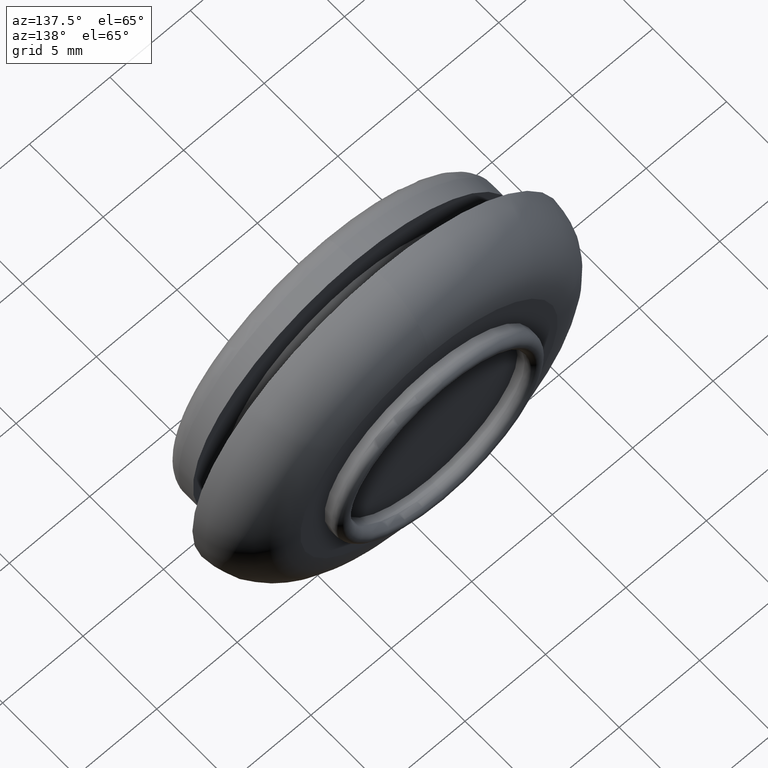
[diagram: clean part render]
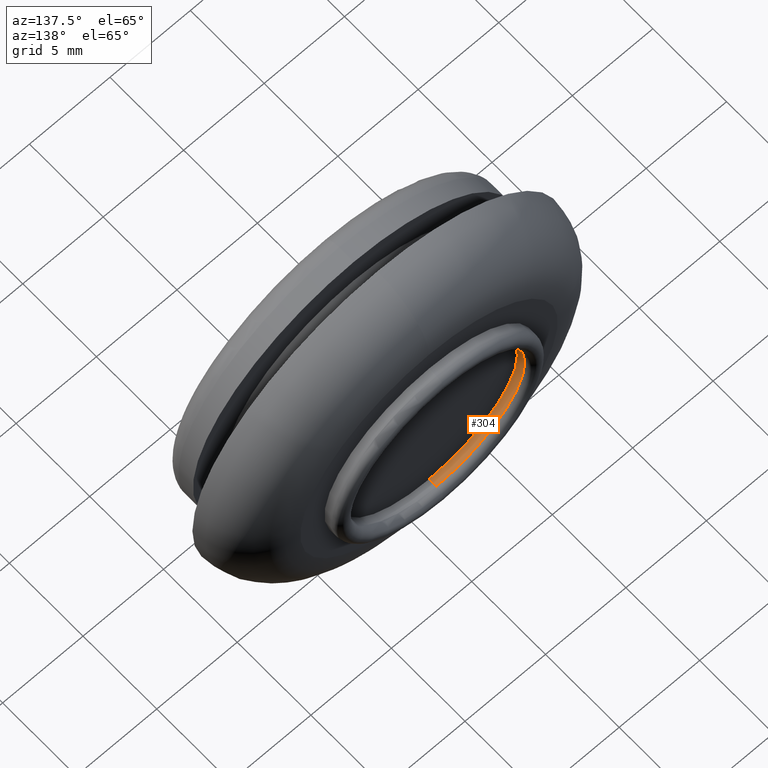
[diagram: same view with one face highlighted and labeled with its STEP entity id]
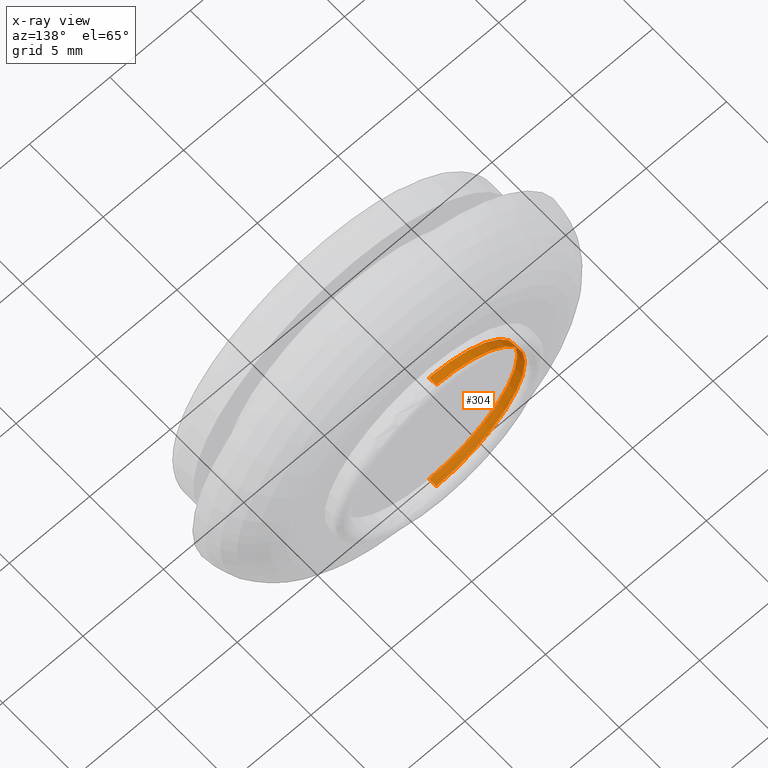
[diagram: x-ray of the same camera — body ghosted, the highlighted face saturated]
A machine part, auxiliary view. The second image highlights one B-rep face of the part: STEP entity #304.
The next image is the same camera in x-ray: the body ghosted, the highlighted face saturated — about 0% of this face is hidden behind the body in this view.
In plain terms, the highlighted cylindrical surface (partial cylindrical patch) has radius 5.5 mm, axis along (0, -1, 0).
Its self-contained STEP definition (entity closure, byte-faithful):
#42 = CIRCLE ( 'NONE', #404, 5.500000000000000000 ) ;
#63 = VERTEX_POINT ( 'NONE', #631 ) ;
#64 = LINE ( 'NONE', #333, #185 ) ;
#66 = ORIENTED_EDGE ( 'NONE', *, *, #86, .T. ) ;
#77 = LINE ( 'NONE', #547, #194 ) ;
#86 = EDGE_CURVE ( 'NONE', #88, #63, #425, .T. ) ;
#88 = VERTEX_POINT ( 'NONE', #256 ) ;
#106 = ORIENTED_EDGE ( 'NONE', *, *, #319, .T. ) ;
#122 = EDGE_CURVE ( 'NONE', #570, #166, #42, .T. ) ;
#164 = DIRECTION ( 'NONE',  ( 0.0000000000000000000, -1.000000000000000000, 0.0000000000000000000 ) ) ;
#166 = VERTEX_POINT ( 'NONE', #181 ) ;
#173 = DIRECTION ( 'NONE',  ( 0.0000000000000000000, -1.000000000000000000, 0.0000000000000000000 ) ) ;
#181 = CARTESIAN_POINT ( 'NONE',  ( 0.0000000000000000000, 7.599999999999999600, -5.500000000000000000 ) ) ;
#185 = VECTOR ( 'NONE', #438, 1000.000000000000000 ) ;
#194 = VECTOR ( 'NONE', #380, 1000.000000000000000 ) ;
#200 = EDGE_LOOP ( 'NONE', ( #310, #106, #66, #467 ) ) ;
#215 = CARTESIAN_POINT ( 'NONE',  ( 0.0000000000000000000, 0.0000000000000000000, -3.061515884555945100E-016 ) ) ;
#229 = FACE_OUTER_BOUND ( 'NONE', #200, .T. ) ;
#256 = CARTESIAN_POINT ( 'NONE',  ( 6.735557395310442000E-016, 7.100000000000000500, 5.500000000000000000 ) ) ;
#304 = ADVANCED_FACE ( 'NONE', ( #229 ), #596, .F. ) ;
#310 = ORIENTED_EDGE ( 'NONE', *, *, #122, .F. ) ;
#319 = EDGE_CURVE ( 'NONE', #570, #88, #77, .T. ) ;
#320 = CARTESIAN_POINT ( 'NONE',  ( 6.735557395310442000E-016, 7.599999999999999600, 5.500000000000000000 ) ) ;
#328 = CARTESIAN_POINT ( 'NONE',  ( 0.0000000000000000000, 7.100000000000000500, -3.061515884555945100E-016 ) ) ;
#333 = CARTESIAN_POINT ( 'NONE',  ( 0.0000000000000000000, 0.0000000000000000000, -5.500000000000000000 ) ) ;
#348 = DIRECTION ( 'NONE',  ( 0.0000000000000000000, 0.0000000000000000000, -1.000000000000000000 ) ) ;
#372 = AXIS2_PLACEMENT_3D ( 'NONE', #328, #173, #579 ) ;
#380 = DIRECTION ( 'NONE',  ( 0.0000000000000000000, -1.000000000000000000, 0.0000000000000000000 ) ) ;
#404 = AXIS2_PLACEMENT_3D ( 'NONE', #645, #598, #556 ) ;
#425 = CIRCLE ( 'NONE', #372, 5.500000000000000000 ) ;
#438 = DIRECTION ( 'NONE',  ( 0.0000000000000000000, -1.000000000000000000, 0.0000000000000000000 ) ) ;
#444 = AXIS2_PLACEMENT_3D ( 'NONE', #215, #164, #348 ) ;
#467 = ORIENTED_EDGE ( 'NONE', *, *, #543, .F. ) ;
#543 = EDGE_CURVE ( 'NONE', #166, #63, #64, .T. ) ;
#547 = CARTESIAN_POINT ( 'NONE',  ( 6.735557395310442000E-016, 0.0000000000000000000, 5.500000000000000000 ) ) ;
#556 = DIRECTION ( 'NONE',  ( 0.0000000000000000000, 0.0000000000000000000, -1.000000000000000000 ) ) ;
#570 = VERTEX_POINT ( 'NONE', #320 ) ;
#579 = DIRECTION ( 'NONE',  ( 0.0000000000000000000, 0.0000000000000000000, -1.000000000000000000 ) ) ;
#596 = CYLINDRICAL_SURFACE ( 'NONE', #444, 5.500000000000000000 ) ;
#598 = DIRECTION ( 'NONE',  ( 0.0000000000000000000, -1.000000000000000000, 0.0000000000000000000 ) ) ;
#631 = CARTESIAN_POINT ( 'NONE',  ( 0.0000000000000000000, 7.100000000000000500, -5.500000000000000000 ) ) ;
#645 = CARTESIAN_POINT ( 'NONE',  ( 0.0000000000000000000, 7.599999999999999600, -3.061515884555945100E-016 ) ) ;